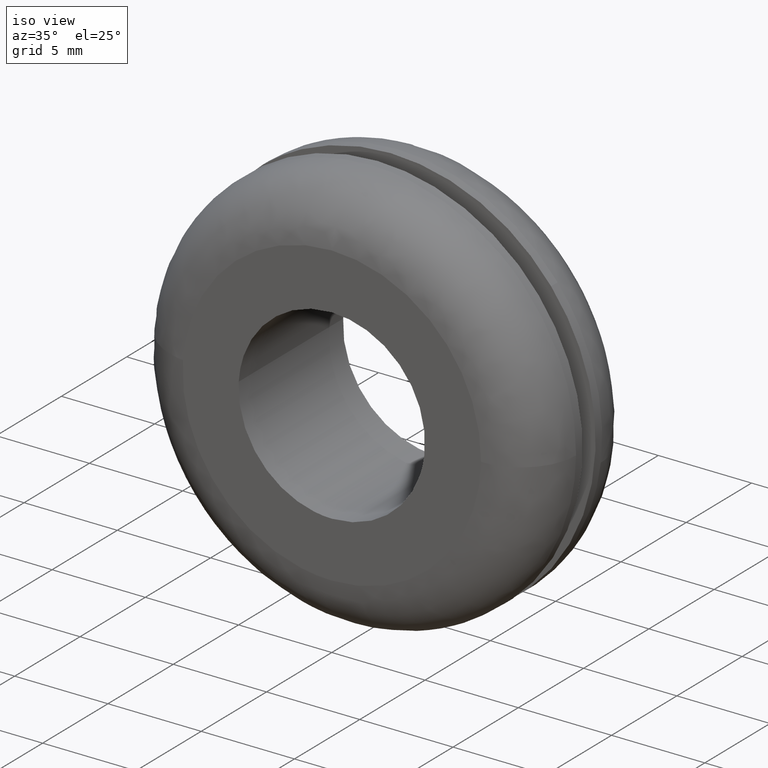
[diagram: clean part render]
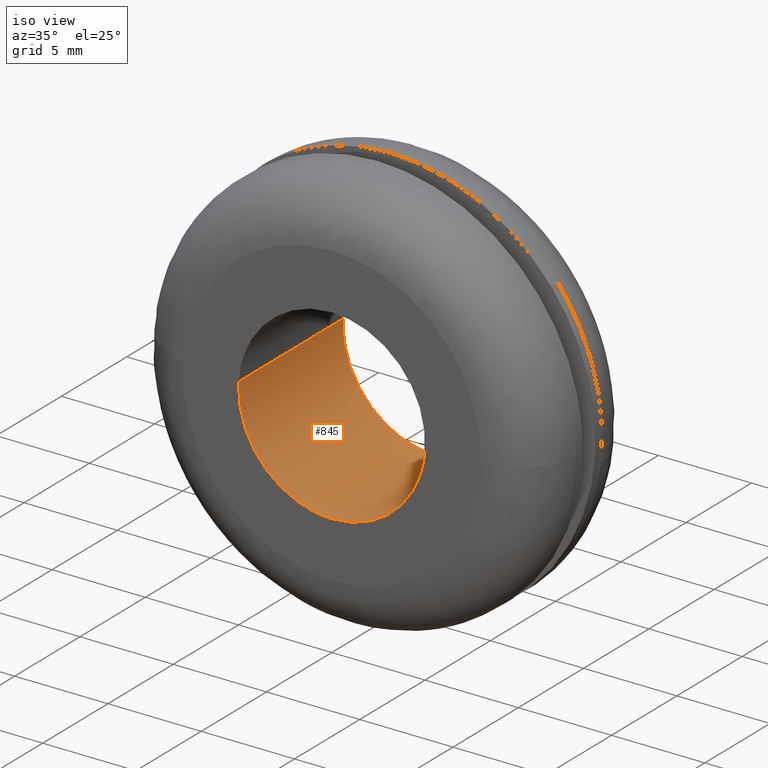
[diagram: same view with one face highlighted and labeled with its STEP entity id]
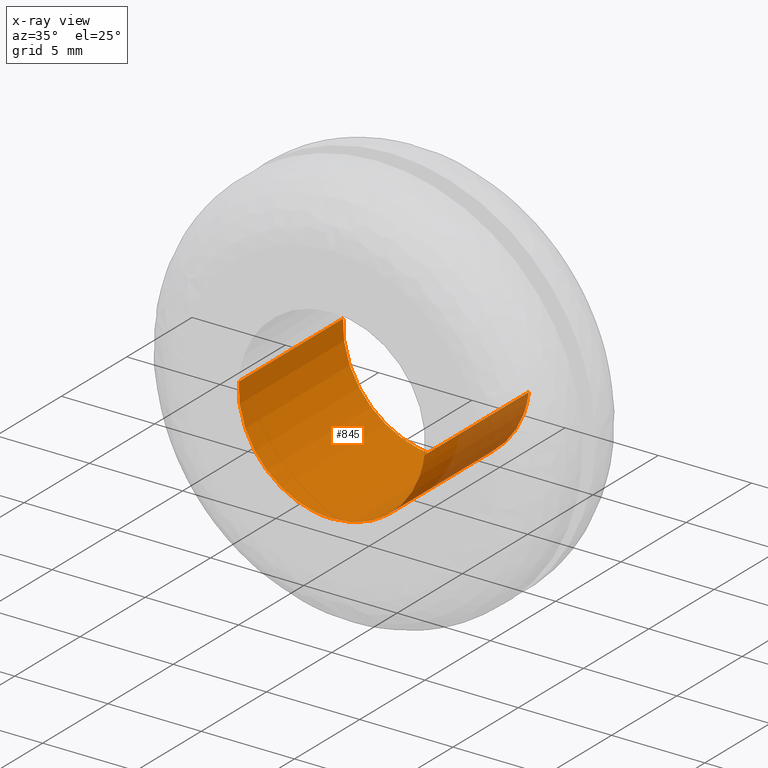
[diagram: x-ray of the same camera — body ghosted, the highlighted face saturated]
A machine part, iso view. The second image highlights one B-rep face of the part: STEP entity #845.
The next image is the same camera in x-ray: the body ghosted, the highlighted face saturated — about 10% of this face is hidden behind the body in this view.
In plain terms, the highlighted face is a freeform B-spline surface patch.
Its self-contained STEP definition (entity closure, byte-faithful):
#678=CARTESIAN_POINT('',(4.965048615628705,7.999999999999972,-0.590162896473502));
#679=VERTEX_POINT('',#678);
#697=CARTESIAN_POINT('',(4.965048603780581,-1.211676E-015,-0.590162996153337));
#698=VERTEX_POINT('',#697);
#699=CARTESIAN_POINT('',(4.965048615628705,7.999999999999972,-0.590162896473502));
#700=CARTESIAN_POINT('',(4.965048603780581,-1.211676E-015,-0.590162996153337));
#701=QUASI_UNIFORM_CURVE('',1,(#699,#700),.UNSPECIFIED.,.F.,.U.);
#702=EDGE_CURVE('',#679,#698,#701,.T.);
#721=CARTESIAN_POINT('',(-4.990674043846146,-1.278017E-015,0.305241851782545));
#722=VERTEX_POINT('',#721);
#736=CARTESIAN_POINT('',(-4.990674044478091,8.0,0.305241841450281));
#737=VERTEX_POINT('',#736);
#738=CARTESIAN_POINT('',(-4.990674044478091,8.0,0.305241841450281));
#739=CARTESIAN_POINT('',(-4.990674043846146,-1.278017E-015,0.305241851782545));
#740=QUASI_UNIFORM_CURVE('',1,(#738,#739),.UNSPECIFIED.,.F.,.U.);
#741=EDGE_CURVE('',#737,#722,#740,.T.);
#759=CARTESIAN_POINT('',(-4.986467740332711,8.200000000000001,0.374014306318153));
#760=CARTESIAN_POINT('',(-4.988564846854461,8.199999999999998,0.339726917769500));
#761=CARTESIAN_POINT('',(-5.295916689783620,8.200000000000001,-4.685431294435050));
#762=CARTESIAN_POINT('',(-0.305242697674285,8.200000000000001,-4.990673992109334));
#763=CARTESIAN_POINT('',(4.407717454197504,8.200000000000001,-5.278930983662638));
#764=CARTESIAN_POINT('',(4.969220639709384,8.200000000000003,-0.555064099463600));
#765=CARTESIAN_POINT('',(4.973371219426771,8.200000000000003,-0.520145711495202));
#766=CARTESIAN_POINT('',(-4.986467740332711,-0.205000000000002,0.374014306318153));
#767=CARTESIAN_POINT('',(-4.988564846854461,-0.205000000000002,0.339726917769500));
#768=CARTESIAN_POINT('',(-5.295916689783620,-0.205000000000002,-4.685431294435050));
#769=CARTESIAN_POINT('',(-0.305242697674285,-0.205000000000002,-4.990673992109334));
#770=CARTESIAN_POINT('',(4.407717454197504,-0.205000000000002,-5.278930983662638));
#771=CARTESIAN_POINT('',(4.969220639709384,-0.205000000000002,-0.555064099463600));
#772=CARTESIAN_POINT('',(4.973371219426771,-0.205000000000002,-0.520145711495202));
#780=(BOUNDED_SURFACE()B_SPLINE_SURFACE(2,1,((#759,#766),(#760,#767),(#761,#768),(#762,#769),(#763,#770),(#764,#771),(#765,#772)),.UNSPECIFIED.,.F.,.F.,.U.)B_SPLINE_SURFACE_WITH_KNOTS((3,1,2,1,3),(2,2),(0.0,0.081184906297859,8.365456153759757,16.318356551323181,16.399551995985270),(0.0,8.405000000000005),.UNSPECIFIED.)GEOMETRIC_REPRESENTATION_ITEM()RATIONAL_B_SPLINE_SURFACE(((1.005740639777321,1.005740639777321),(1.002870319888661,1.002870319888661),(0.707106781186548,0.707106781186548),(1.0,1.0),(0.718822509939086,0.718822509939086),(0.980146837873140,0.980146837873140),(0.982787874951153,0.982787874951153)))REPRESENTATION_ITEM('')SURFACE());
#781=CARTESIAN_POINT('',(0.0,8.0,-5.0));
#782=VERTEX_POINT('',#781);
#783=CARTESIAN_POINT('',(0.0,8.0,-5.0));
#784=CARTESIAN_POINT('',(4.440880084878231,8.0,-4.999999999999999));
#785=CARTESIAN_POINT('',(4.965048615628706,7.999999999999972,-0.590162896473502));
#793=(BOUNDED_CURVE()B_SPLINE_CURVE(2,(#783,#784,#785),.UNSPECIFIED.,.F.,.U.)B_SPLINE_CURVE_WITH_KNOTS((3,3),(0.0,0.229562755246671),.UNSPECIFIED.)CURVE()GEOMETRIC_REPRESENTATION_ITEM()RATIONAL_B_SPLINE_CURVE((1.0,0.731050502784471,0.956027306392972))REPRESENTATION_ITEM(''));
#794=EDGE_CURVE('',#782,#679,#793,.T.);
#795=ORIENTED_EDGE('',*,*,#794,.F.);
#796=CARTESIAN_POINT('',(-4.990674044478091,8.0,0.305241841450280));
#797=CARTESIAN_POINT('',(-4.999999999999999,8.0,0.152762957868185));
#798=CARTESIAN_POINT('',(-5.0,8.0,-1.836910E-016));
#799=CARTESIAN_POINT('',(-5.000000000000001,8.0,-5.000000000000001));
#800=CARTESIAN_POINT('',(0.0,8.0,-5.0));
#808=(BOUNDED_CURVE()B_SPLINE_CURVE(2,(#796,#797,#798,#799,#800),.UNSPECIFIED.,.F.,.U.)B_SPLINE_CURVE_WITH_KNOTS((3,2,3),(0.739333021447884,0.750000000000000,1.0),.UNSPECIFIED.)CURVE()GEOMETRIC_REPRESENTATION_ITEM()RATIONAL_B_SPLINE_CURVE((0.976072168562782,0.987502857267426,1.0,0.707106781186548,1.0))REPRESENTATION_ITEM(''));
#809=EDGE_CURVE('',#737,#782,#808,.T.);
#810=ORIENTED_EDGE('',*,*,#809,.F.);
#811=ORIENTED_EDGE('',*,*,#741,.T.);
#812=CARTESIAN_POINT('',(0.0,-9.184548E-016,-5.0));
#813=VERTEX_POINT('',#812);
#814=CARTESIAN_POINT('',(-4.990674043846146,-1.278017E-015,0.305241851782545));
#815=CARTESIAN_POINT('',(-5.000000000000001,-9.184548E-016,0.152762968229419));
#816=CARTESIAN_POINT('',(-5.0,-9.184548E-016,-1.836910E-016));
#817=CARTESIAN_POINT('',(-5.000000000000001,-9.184548E-016,-5.000000000000001));
#818=CARTESIAN_POINT('',(0.0,-9.184548E-016,-5.0));
#826=(BOUNDED_CURVE()B_SPLINE_CURVE(2,(#814,#815,#816,#817,#818),.UNSPECIFIED.,.F.,.U.)B_SPLINE_CURVE_WITH_KNOTS((3,2,3),(0.739333020733432,0.750000000000000,1.0),.UNSPECIFIED.)CURVE()GEOMETRIC_REPRESENTATION_ITEM()RATIONAL_B_SPLINE_CURVE((0.976072167031574,0.987502856430394,1.0,0.707106781186548,1.0))REPRESENTATION_ITEM(''));
#827=EDGE_CURVE('',#722,#813,#826,.T.);
#828=ORIENTED_EDGE('',*,*,#827,.T.);
#829=CARTESIAN_POINT('',(0.0,-9.184548E-016,-5.0));
#830=CARTESIAN_POINT('',(4.440879995094166,-9.184548E-016,-5.0));
#831=CARTESIAN_POINT('',(4.965048603780581,-1.211676E-015,-0.590162996153337));
#839=(BOUNDED_CURVE()B_SPLINE_CURVE(2,(#829,#830,#831),.UNSPECIFIED.,.F.,.U.)B_SPLINE_CURVE_WITH_KNOTS((3,3),(0.0,0.229562751853709),.UNSPECIFIED.)CURVE()GEOMETRIC_REPRESENTATION_ITEM()RATIONAL_B_SPLINE_CURVE((1.0,0.731050506759574,0.956027299742609))REPRESENTATION_ITEM(''));
#840=EDGE_CURVE('',#813,#698,#839,.T.);
#841=ORIENTED_EDGE('',*,*,#840,.T.);
#842=ORIENTED_EDGE('',*,*,#702,.F.);
#843=EDGE_LOOP('',(#795,#810,#811,#828,#841,#842));
#844=FACE_OUTER_BOUND('',#843,.T.);
#845=ADVANCED_FACE('',(#844),#780,.F.);